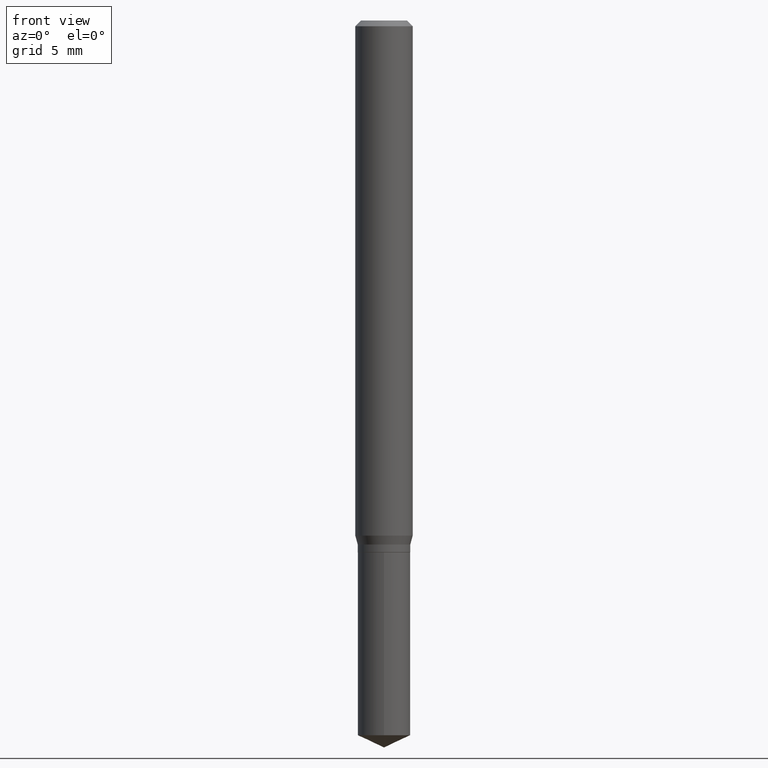
[diagram: clean part render]
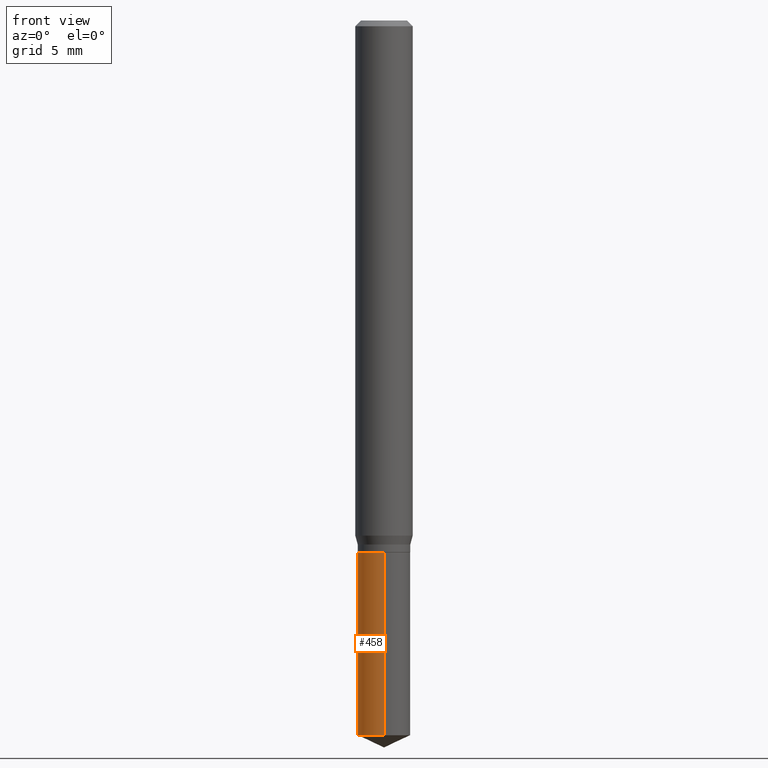
[diagram: same view with one face highlighted and labeled with its STEP entity id]
A machine part, front view. The second image highlights one B-rep face of the part: STEP entity #458.
In plain terms, the highlighted cylindrical surface (edge-blend (fillet) strip) has radius 1.3754 mm, axis along (-0, 0, 1).
Its self-contained STEP definition (entity closure, byte-faithful):
#20 = VECTOR ( 'NONE', #79, 39.37007874015748143 ) ;
#63 = ORIENTED_EDGE ( 'NONE', *, *, #69, .T. ) ;
#68 = ORIENTED_EDGE ( 'NONE', *, *, #395, .F. ) ;
#69 = EDGE_CURVE ( 'NONE', #463, #370, #468, .T. ) ;
#79 = DIRECTION ( 'NONE',  ( -2.445358326776455790E-29, 3.491639551644474585E-15, 1.000000000000000000 ) ) ;
#80 = CARTESIAN_POINT ( 'NONE',  ( 3.847588914141209009E-16, 0.05414999999999617342, -1.094500000000000028 ) ) ;
#103 = EDGE_CURVE ( 'NONE', #463, #285, #457, .T. ) ;
#142 = DIRECTION ( 'NONE',  ( -2.445358326776455510E-29, 3.491639551644474585E-15, 1.000000000000000000 ) ) ;
#153 = DIRECTION ( 'NONE',  ( -2.445358326776455510E-29, 3.491639551644474585E-15, 1.000000000000000000 ) ) ;
#182 = VERTEX_POINT ( 'NONE', #346 ) ;
#208 = CYLINDRICAL_SURFACE ( 'NONE', #371, 0.05414999999999999675 ) ;
#234 = CARTESIAN_POINT ( 'NONE',  ( 3.847588914141302193E-16, 0.05414999999999617342, -1.094500000000000028 ) ) ;
#243 = DIRECTION ( 'NONE',  ( -2.445358326776455510E-29, 3.491639551644474585E-15, 1.000000000000000000 ) ) ;
#246 = FACE_OUTER_BOUND ( 'NONE', #280, .T. ) ;
#280 = EDGE_LOOP ( 'NONE', ( #323, #63, #394, #68 ) ) ;
#285 = VERTEX_POINT ( 'NONE', #234 ) ;
#288 = CARTESIAN_POINT ( 'NONE',  ( -3.781274289966845089E-16, -0.05415000000000382008, -1.094499999999999806 ) ) ;
#317 = LINE ( 'NONE', #288, #462 ) ;
#323 = ORIENTED_EDGE ( 'NONE', *, *, #103, .F. ) ;
#330 = DIRECTION ( 'NONE',  ( -2.445358326776455790E-29, 3.491639551644474585E-15, 1.000000000000000000 ) ) ;
#340 = CARTESIAN_POINT ( 'NONE',  ( 3.596874846011567459E-29, -5.135502916392647345E-15, -1.470849440310906919 ) ) ;
#346 = CARTESIAN_POINT ( 'NONE',  ( -3.781274289966845089E-16, -0.05415000000000382008, -1.094499999999999806 ) ) ;
#357 = CARTESIAN_POINT ( 'NONE',  ( 2.676565608369631794E-29, -3.821426325363822773E-15, -1.094499999999999806 ) ) ;
#359 = CIRCLE ( 'NONE', #429, 0.05414999999999999675 ) ;
#370 = VERTEX_POINT ( 'NONE', #481 ) ;
#371 = AXIS2_PLACEMENT_3D ( 'NONE', #400, #243, #446 ) ;
#379 = DIRECTION ( 'NONE',  ( -6.982962677686265922E-15, -1.000000000000000000, 5.044963977219322809E-15 ) ) ;
#394 = ORIENTED_EDGE ( 'NONE', *, *, #409, .T. ) ;
#395 = EDGE_CURVE ( 'NONE', #285, #182, #359, .T. ) ;
#396 = CARTESIAN_POINT ( 'NONE',  ( 3.847588914141302686E-16, 0.05414999999999487584, -1.470849440310907363 ) ) ;
#400 = CARTESIAN_POINT ( 'NONE',  ( 2.676565608369631794E-29, -3.821426325363822773E-15, -1.094499999999999806 ) ) ;
#409 = EDGE_CURVE ( 'NONE', #370, #182, #317, .T. ) ;
#427 = AXIS2_PLACEMENT_3D ( 'NONE', #340, #153, #379 ) ;
#429 = AXIS2_PLACEMENT_3D ( 'NONE', #357, #142, #476 ) ;
#446 = DIRECTION ( 'NONE',  ( -6.982962677686265922E-15, -1.000000000000000000, 2.522481988609661405E-15 ) ) ;
#457 = LINE ( 'NONE', #80, #20 ) ;
#458 = ADVANCED_FACE ( 'NONE', ( #246 ), #208, .T. ) ;
#462 = VECTOR ( 'NONE', #330, 39.37007874015748143 ) ;
#463 = VERTEX_POINT ( 'NONE', #396 ) ;
#468 = CIRCLE ( 'NONE', #427, 0.05414999999999999675 ) ;
#476 = DIRECTION ( 'NONE',  ( -6.982962677686265922E-15, -1.000000000000000000, 2.522481988609661405E-15 ) ) ;
#481 = CARTESIAN_POINT ( 'NONE',  ( -3.781274289966754370E-16, -0.05415000000000514541, -1.470849440310906697 ) ) ;